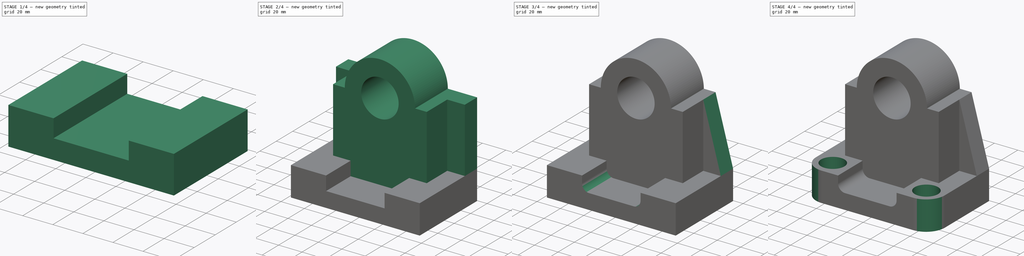
[diagram: build sequence overview — one tinted view per stage of 4, left to right]
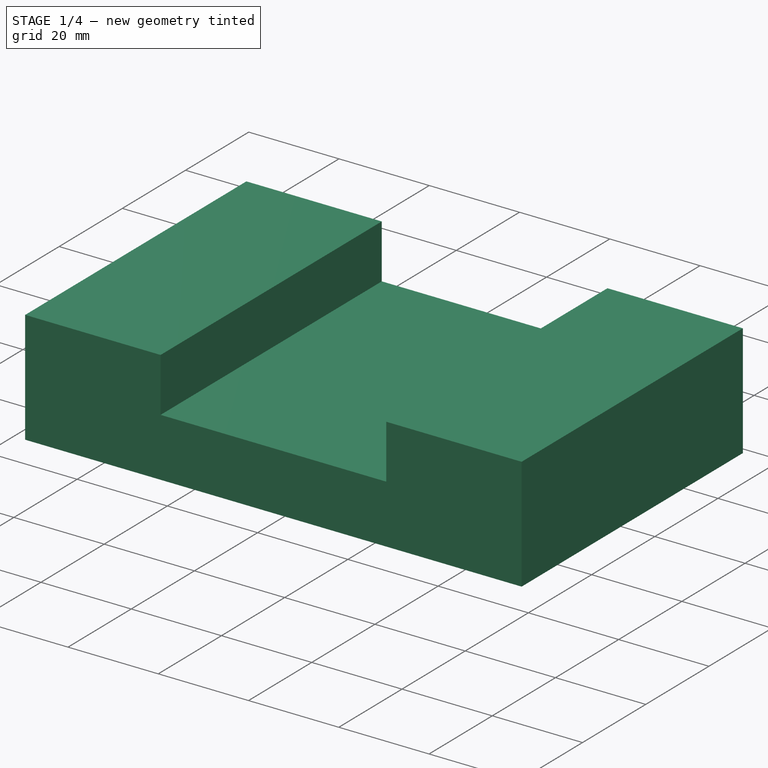
[diagram: stage 1 of 4 — iso view after this stage's code; geometry added in this stage tinted green]
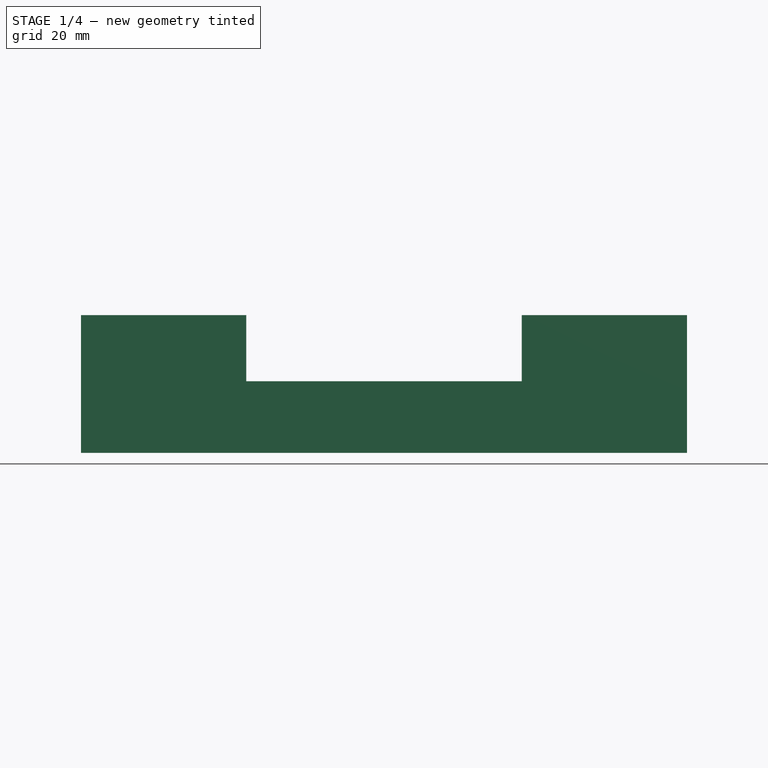
[diagram: stage 1 of 4 — front view after this stage's code; geometry added in this stage tinted green]
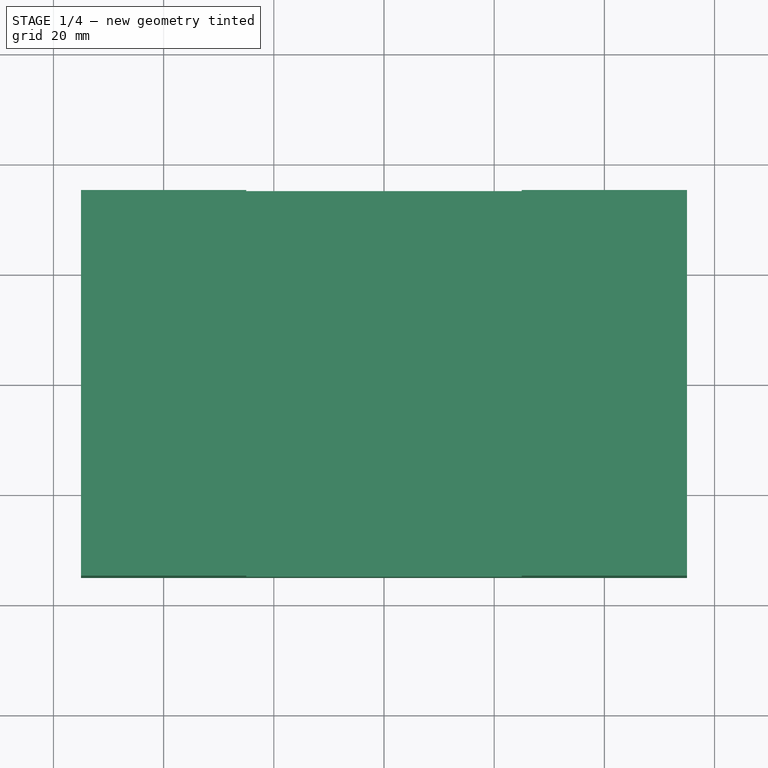
[diagram: stage 1 of 4 — top view after this stage's code; geometry added in this stage tinted green]
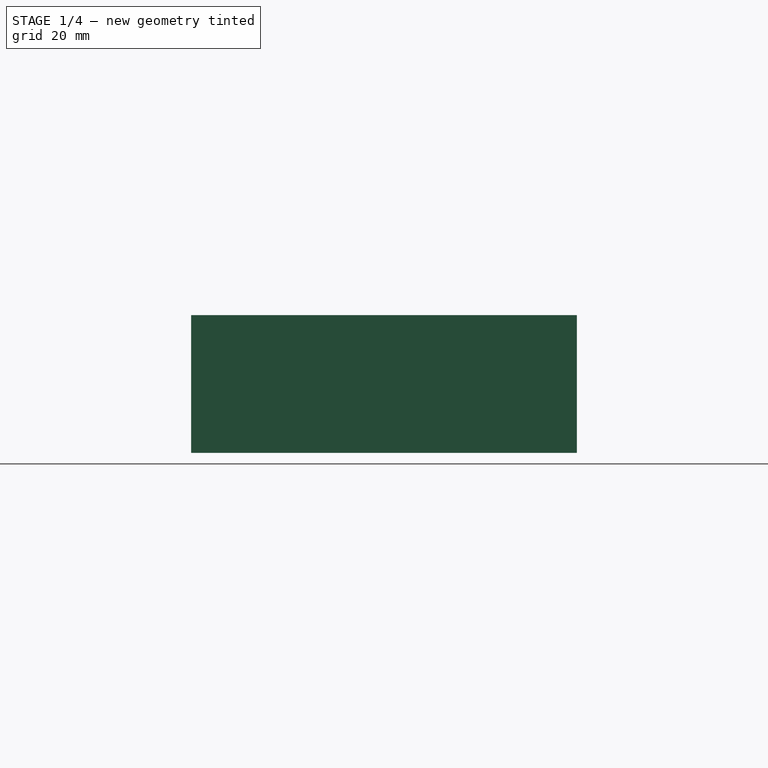
[diagram: stage 1 of 4 — right view after this stage's code; geometry added in this stage tinted green]
FCSTD DOCUMENT  (FreeCAD 0.18R4 (GitTag))
Label: Set 1
License: All rights reserved
LicenseURL: http://en.wikipedia.org/wiki/All_rights_reserved
objects: Sketcher::SketchObject×7, PartDesign::Pocket×5, PartDesign::Fillet×3, PartDesign::Pad×2, PartDesign::Body×1
note: 25 computed .brp shape members not serialized (recipe doc carries the construction recipe); baked Part::Feature solids carry a one-line shape summary decoded from their .brp

FEATURE [Sketcher::SketchObject] Sketch
  MapMode = 5
  Support = -> [XY_Plane]
  sketch-geometry (4):
    g0: LineSegment StartX=-55 StartY=35 StartZ=0 EndX=55 EndY=35 EndZ=0
    g1: LineSegment StartX=55 StartY=35 StartZ=0 EndX=55 EndY=-35 EndZ=0
    g2: LineSegment StartX=55 StartY=-35 StartZ=0 EndX=-55 EndY=-35 EndZ=0
    g3: LineSegment StartX=-55 StartY=-35 StartZ=0 EndX=-55 EndY=35 EndZ=0
  constraints (11):
    c: Coincident(g0,g1)
    c: Coincident(g1,g2)
    c: Coincident(g2,g3)
    c: Coincident(g3,g0)
    c: Horizontal(g0)
    c: Horizontal(g2)
    c: Vertical(g1)
    c: Vertical(g3)
    c: DistanceX(g0,g0) = 110
    c: DistanceY(g3,g3) = 70
    c: Symmetric(g0,g1,g-1)
FEATURE [PartDesign::Pad] Pad
  Length = 25
  Length2 = 100
  Profile = -> Sketch
  Type = 0
FEATURE [Sketcher::SketchObject] Sketch001
  ExternalGeometry = -> [Pad]
  MapMode = 5
  Placement = pos=(0,-35,0) rot=(1,0,0;1.5708rad)
  Support = -> [Pad]
  sketch-geometry (4):
    g0: LineSegment StartX=-25 StartY=25 StartZ=0 EndX=25 EndY=25 EndZ=0
    g1: LineSegment StartX=25 StartY=25 StartZ=0 EndX=25 EndY=13 EndZ=0
    g2: LineSegment StartX=25 StartY=13 StartZ=0 EndX=-25 EndY=13 EndZ=0
    g3: LineSegment StartX=-25 StartY=13 StartZ=0 EndX=-25 EndY=25 EndZ=0
  constraints (12):
    c: Coincident(g0,g1)
    c: Coincident(g1,g2)
    c: Coincident(g2,g3)
    c: Coincident(g3,g0)
    c: Horizontal(g0)
    c: Horizontal(g2)
    c: Vertical(g1)
    c: Vertical(g3)
    c: DistanceX(g2,g2) = 50
    c: DistanceY(g1,g1) = 12
    c: DistanceX(g-1,g1) = 25
    c: PointOnObject(g0,g-3)
FEATURE [PartDesign::Pocket] Pocket
  BaseFeature = -> Pad
  Length = 5
  Length2 = 100
  Profile = -> Sketch001
  Type = 1
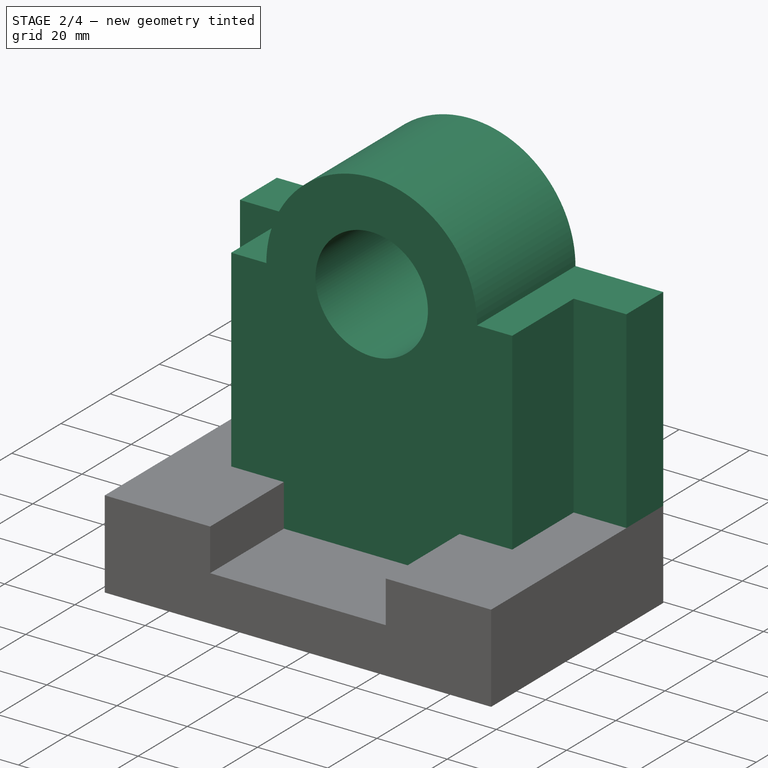
[diagram: stage 2 of 4 — iso view after this stage's code; geometry added in this stage tinted green]
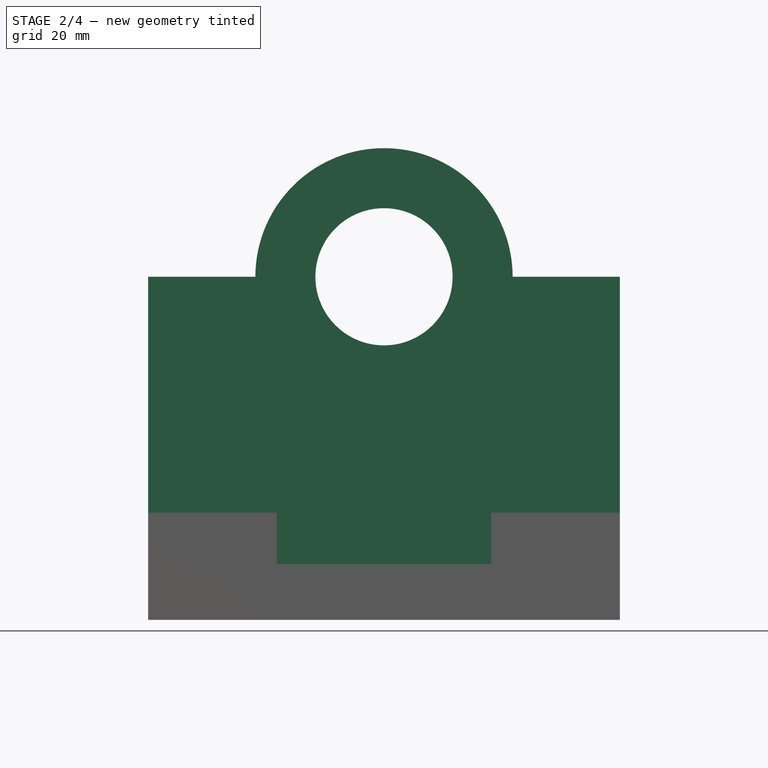
[diagram: stage 2 of 4 — front view after this stage's code; geometry added in this stage tinted green]
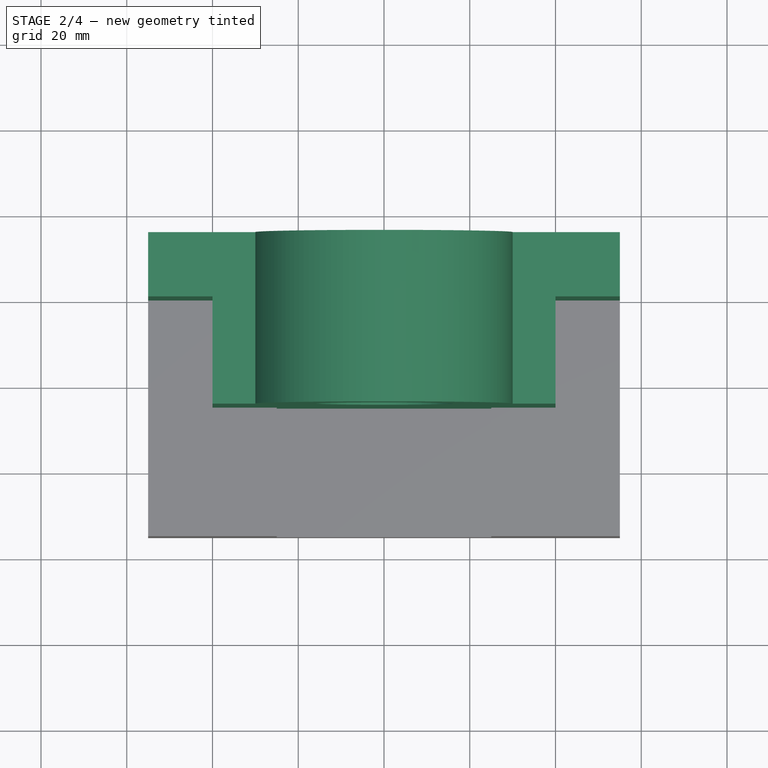
[diagram: stage 2 of 4 — top view after this stage's code; geometry added in this stage tinted green]
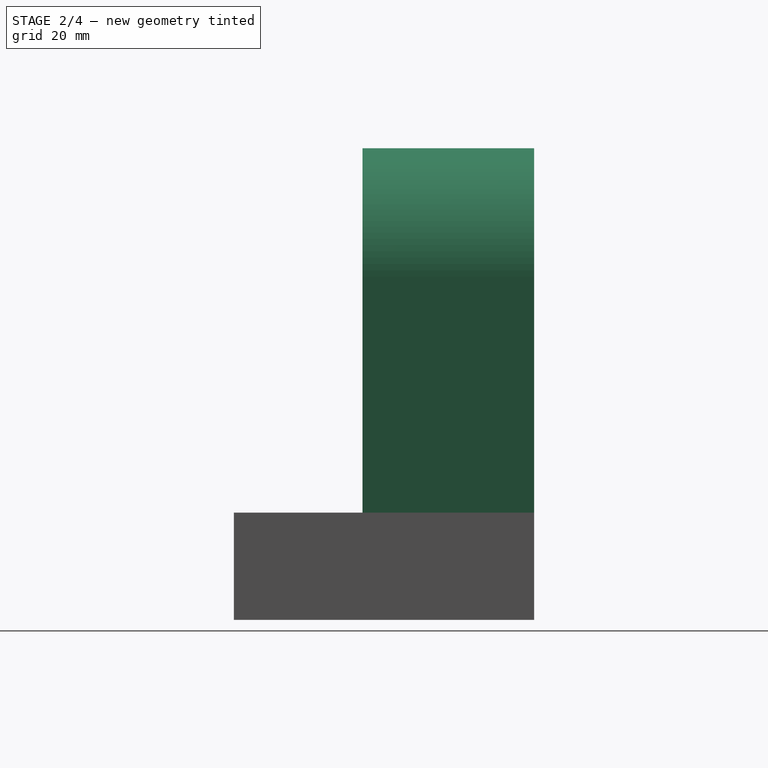
[diagram: stage 2 of 4 — right view after this stage's code; geometry added in this stage tinted green]
FEATURE [Sketcher::SketchObject] Sketch002
  ExternalGeometry = -> [Pocket]
  MapMode = 5
  Placement = pos=(0,35,0) rot=(0,0.707107,0.707107;3.14159rad)
  Support = -> [Pocket]
  sketch-geometry (10):
    g0: LineSegment StartX=-55 StartY=25 StartZ=0 EndX=-55 EndY=80 EndZ=0
    g1: LineSegment StartX=-55 StartY=80 StartZ=0 EndX=-30 EndY=80 EndZ=0
    g2: LineSegment StartX=55 StartY=25 StartZ=0 EndX=55 EndY=80 EndZ=0
    g3: LineSegment StartX=55 StartY=80 StartZ=0 EndX=30 EndY=80 EndZ=0
    g4: ArcOfCircle CenterX=0 CenterY=80 CenterZ=0 NormalX=0 NormalY=0 NormalZ=1 AngleXU=0 Radius=30 StartAngle=0 EndAngle=3.14159
    g5: LineSegment StartX=-55 StartY=25 StartZ=0 EndX=-25 EndY=25 EndZ=0
    g6: LineSegment StartX=-25 StartY=25 StartZ=0 EndX=-25 EndY=13 EndZ=0
    g7: LineSegment StartX=-25 StartY=13 StartZ=0 EndX=25 EndY=13 EndZ=0
    g8: LineSegment StartX=25 StartY=13 StartZ=0 EndX=25 EndY=25 EndZ=0
    g9: LineSegment StartX=25 StartY=25 StartZ=0 EndX=55 EndY=25 EndZ=0
  constraints (25):
    c: Coincident(g0,g1)
    c: Coincident(g2,g3)
    c: Radius(g4) = 30
    c: Coincident(g4,g1)
    c: Coincident(g0,g-3)
    c: Coincident(g4,g3)
    c: Coincident(g2,g-4)
    c: DistanceY(g2,g2) = 55
    c: DistanceY(g0,g0) = 55
    c: Parallel(g0,g-2)
    c: Parallel(g2,g-2)
    c: Parallel(g1,g-3)
    c: Parallel(g3,g-4)
    c: DistanceY(g-3,g4) = 55
    c: PointOnObject(g4,g-2)
    c: Coincident(g5,g6)
    c: Coincident(g6,g7)
    c: Coincident(g7,g8)
    c: Coincident(g8,g9)
    c: Coincident(g5,g0)
    c: Coincident(g5,g-5)
    c: Coincident(g6,g-6)
    c: Coincident(g7,g-7)
    c: Coincident(g8,g-7)
    c: Coincident(g2,g9)
FEATURE [PartDesign::Pad] Pad001
  BaseFeature = -> Pocket
  Length = 40
  Length2 = 100
  Profile = -> Sketch002
  Reversed = true
  Type = 0
FEATURE [Sketcher::SketchObject] Sketch003
  ExternalGeometry = -> [Pad001]
  MapMode = 5
  Placement = pos=(0,35,-6.5e-15) rot=(0,0.707107,0.707107;3.14159rad)
  Support = -> [Pad001]
  sketch-geometry (1):
    g0: Circle CenterX=0 CenterY=80 CenterZ=0 NormalX=0 NormalY=0 NormalZ=1 AngleXU=0 Radius=16
  constraints (2):
    c: Radius(g0) = 16
    c: Coincident(g0,g-3)
FEATURE [PartDesign::Pocket] Pocket001
  BaseFeature = -> Pad001
  Length = 5
  Length2 = 100
  Profile = -> Sketch003
  Type = 1
FEATURE [Sketcher::SketchObject] Sketch004
  ExternalGeometry = -> [Pocket001]
  MapMode = 5
  Placement = pos=(0,-5,9e-16) rot=(1,0,0;1.5708rad)
  Support = -> [Pocket001]
  sketch-geometry (8):
    g0: LineSegment StartX=-55 StartY=80 StartZ=0 EndX=-40 EndY=80 EndZ=0
    g1: LineSegment StartX=-40 StartY=80 StartZ=0 EndX=-40 EndY=25 EndZ=0
    g2: LineSegment StartX=-40 StartY=25 StartZ=0 EndX=-55 EndY=25 EndZ=0
    g3: LineSegment StartX=-55 StartY=25 StartZ=0 EndX=-55 EndY=80 EndZ=0
    g4: LineSegment StartX=55 StartY=80 StartZ=0 EndX=40 EndY=80 EndZ=0
    g5: LineSegment StartX=55 StartY=25 StartZ=0 EndX=55 EndY=80 EndZ=0
    g6: LineSegment StartX=40 StartY=80 StartZ=0 EndX=40 EndY=25 EndZ=0
    g7: LineSegment StartX=40 StartY=25 StartZ=0 EndX=55 EndY=25 EndZ=0
  constraints (19):
    c: Coincident(g0,g1)
    c: Coincident(g1,g2)
    c: Coincident(g2,g3)
    c: Coincident(g3,g0)
    c: Horizontal(g0)
    c: Horizontal(g2)
    c: Vertical(g1)
    c: Coincident(g-4,g2)
    c: Coincident(g0,g-3)
    c: DistanceX(g0,g0) = 15
    c: Coincident(g4,g6)
    c: Coincident(g6,g7)
    c: Coincident(g7,g5)
    c: Coincident(g5,g4)
    c: Horizontal(g4)
    c: Horizontal(g7)
    c: Vertical(g6)
    c: DistanceX(g4,g4) = 15
    c: DistanceX(g6,g5) = 15
FEATURE [PartDesign::Pocket] Pocket002
  BaseFeature = -> Pocket001
  Length = 25
  Length2 = 100
  Profile = -> Sketch004
  Type = 0
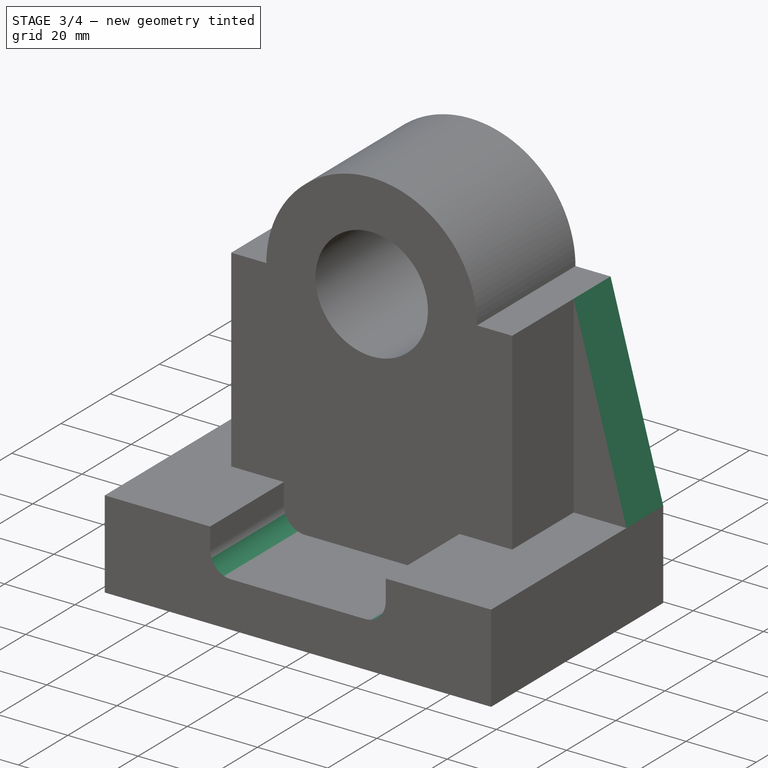
[diagram: stage 3 of 4 — iso view after this stage's code; geometry added in this stage tinted green]
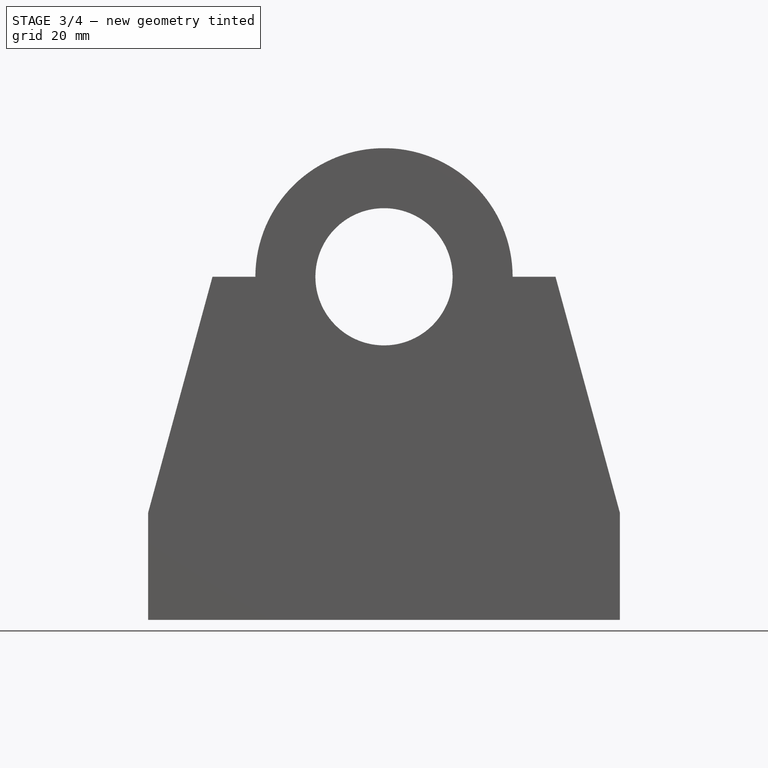
[diagram: stage 3 of 4 — front view after this stage's code; geometry added in this stage tinted green]
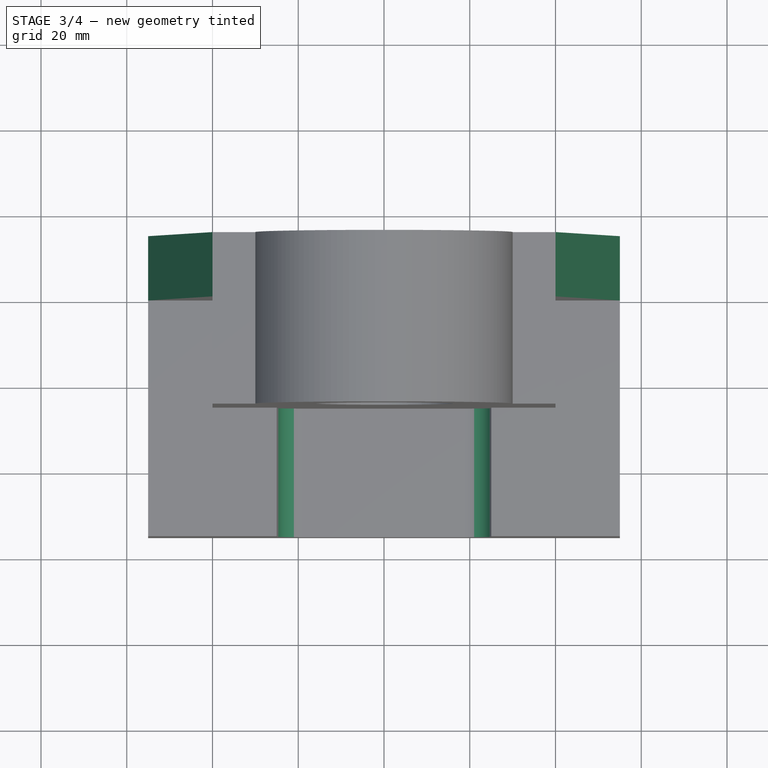
[diagram: stage 3 of 4 — top view after this stage's code; geometry added in this stage tinted green]
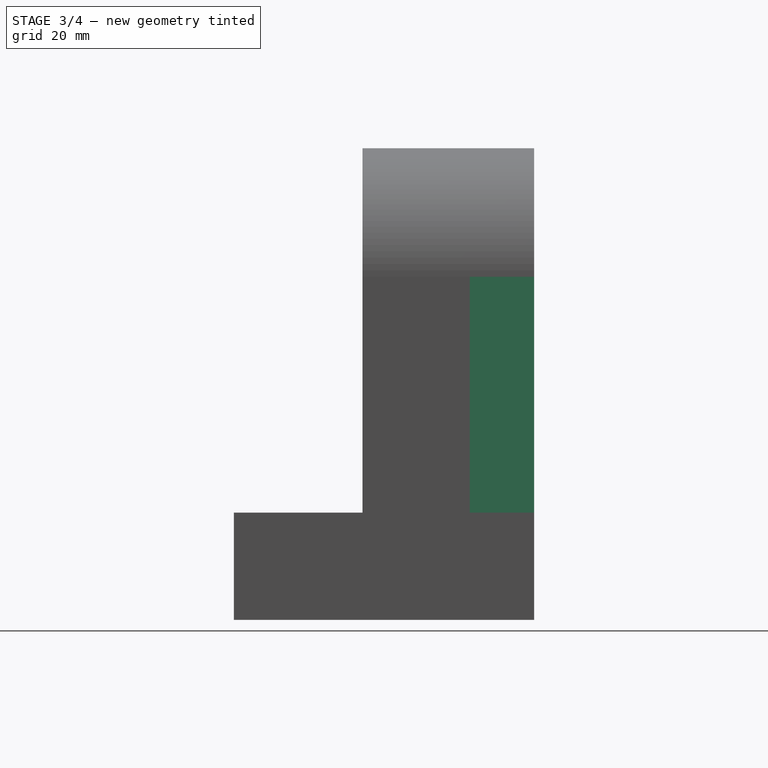
[diagram: stage 3 of 4 — right view after this stage's code; geometry added in this stage tinted green]
FEATURE [Sketcher::SketchObject] Sketch005
  ExternalGeometry = -> [Pocket002]
  MapMode = 5
  Placement = pos=(0,20,-4.5e-15) rot=(1,0,0;1.5708rad)
  Support = -> [Pocket002]
  sketch-geometry (6):
    g0: LineSegment StartX=-55 StartY=80 StartZ=0 EndX=-55 EndY=25 EndZ=0
    g1: LineSegment StartX=-55 StartY=25 StartZ=0 EndX=-40 EndY=80 EndZ=0
    g2: LineSegment StartX=-40 StartY=80 StartZ=0 EndX=-55 EndY=80 EndZ=0
    g3: LineSegment StartX=55 StartY=25 StartZ=0 EndX=40 EndY=80 EndZ=0
    g4: LineSegment StartX=55 StartY=80 StartZ=0 EndX=55 EndY=25 EndZ=0
    g5: LineSegment StartX=40 StartY=80 StartZ=0 EndX=55 EndY=80 EndZ=0
  constraints (9):
    c: Coincident(g0,g1)
    c: Coincident(g1,g2)
    c: Coincident(g2,g0)
    c: Coincident(g0,g-4)
    c: Coincident(g1,g-3)
    c: Coincident(g0,g-4)
    c: Coincident(g4,g3)
    c: Coincident(g3,g5)
    c: Coincident(g5,g4)
FEATURE [PartDesign::Pocket] Pocket003
  BaseFeature = -> Pocket002
  Length = 5
  Length2 = 100
  Profile = -> Sketch005
  Type = 1
FEATURE [PartDesign::Fillet] Fillet
  Base = -> Pocket003 [Edge57]
  BaseFeature = -> Pocket003
  Radius = 6
FEATURE [PartDesign::Fillet] Fillet001
  Base = -> Fillet [Edge11]
  BaseFeature = -> Fillet
  Radius = 6
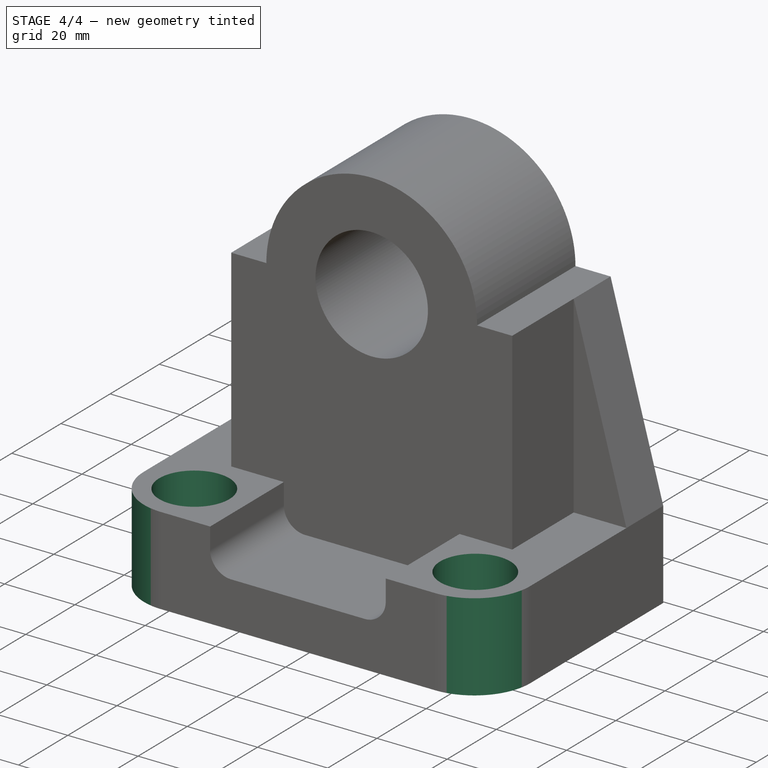
[diagram: stage 4 of 4 — iso view after this stage's code; geometry added in this stage tinted green]
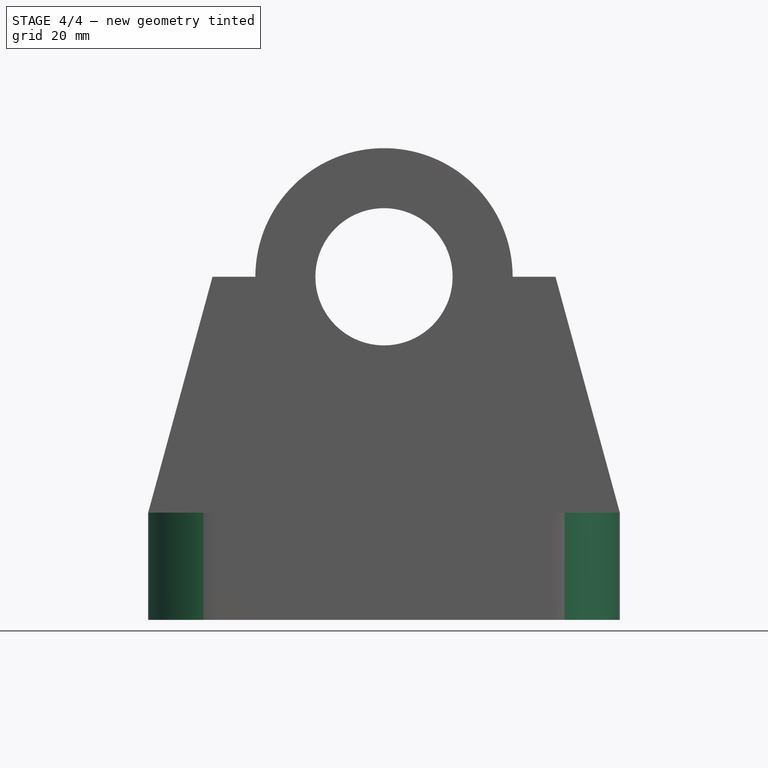
[diagram: stage 4 of 4 — front view after this stage's code; geometry added in this stage tinted green]
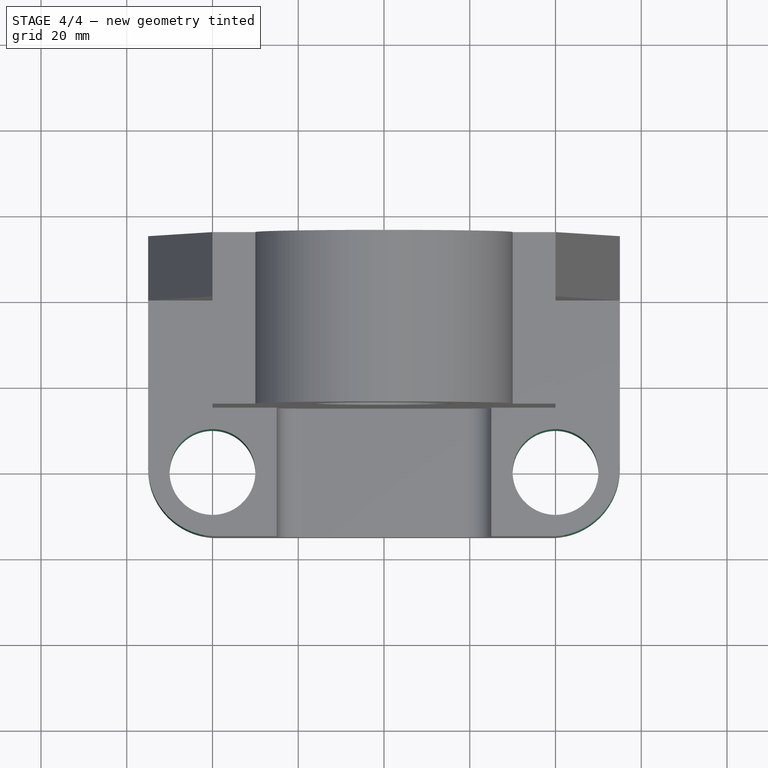
[diagram: stage 4 of 4 — top view after this stage's code; geometry added in this stage tinted green]
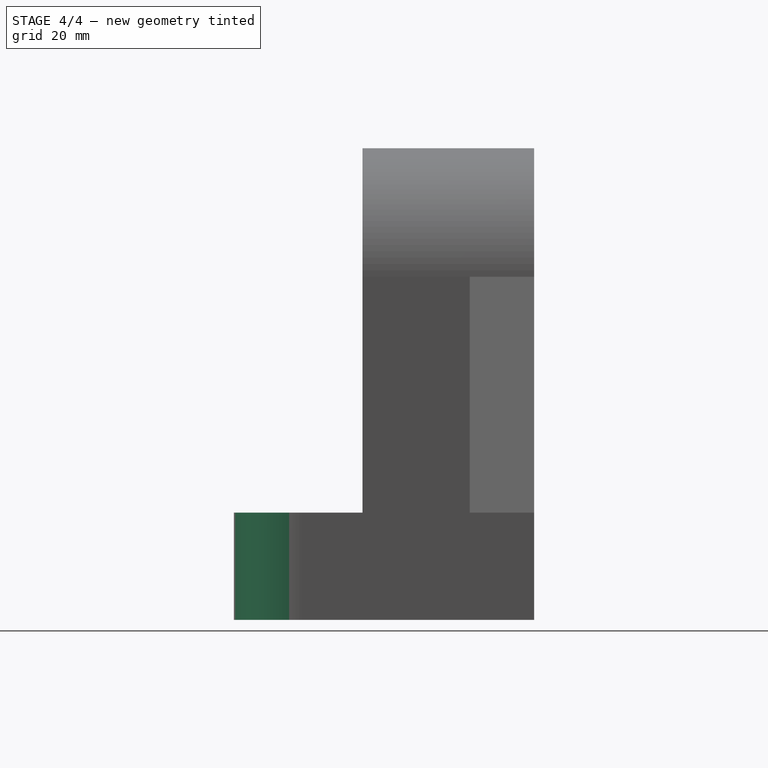
[diagram: stage 4 of 4 — right view after this stage's code; geometry added in this stage tinted green]
FEATURE [PartDesign::Fillet] Fillet002
  Base = -> Fillet001 [Edge8,Edge9]
  BaseFeature = -> Fillet001
  Radius = 16
FEATURE [Sketcher::SketchObject] Sketch006
  ExternalGeometry = -> [Fillet002]
  MapMode = 5
  Placement = pos=(0,0,25) rot=(0,0,1;0rad)
  Support = -> [Fillet002]
  sketch-geometry (2):
    g0: Circle CenterX=-40 CenterY=-20 CenterZ=0 NormalX=0 NormalY=0 NormalZ=1 AngleXU=0 Radius=10
    g1: Circle CenterX=40 CenterY=-20 CenterZ=0 NormalX=0 NormalY=0 NormalZ=1 AngleXU=0 Radius=10
  constraints (3):
    c: Radius(g0) = 10
    c: Symmetric(g-6,g-5,g0)
    c: Radius(g1) = 10
FEATURE [PartDesign::Pocket] Pocket004
  BaseFeature = -> Fillet002
  Length = 5
  Length2 = 100
  Profile = -> Sketch006
  Type = 1
FEATURE [PartDesign::Body] Body
  Group = -> [Sketch,Pad,Sketch001,Pocket,Sketch002,Pad001,Sketch003,Pocket001,Sketch004,Pocket002,Sketch005,Pocket003,Fillet,Fillet001,Fillet002,Sketch006,Pocket004]
  Origin = -> Origin
  Tip = -> Pocket004
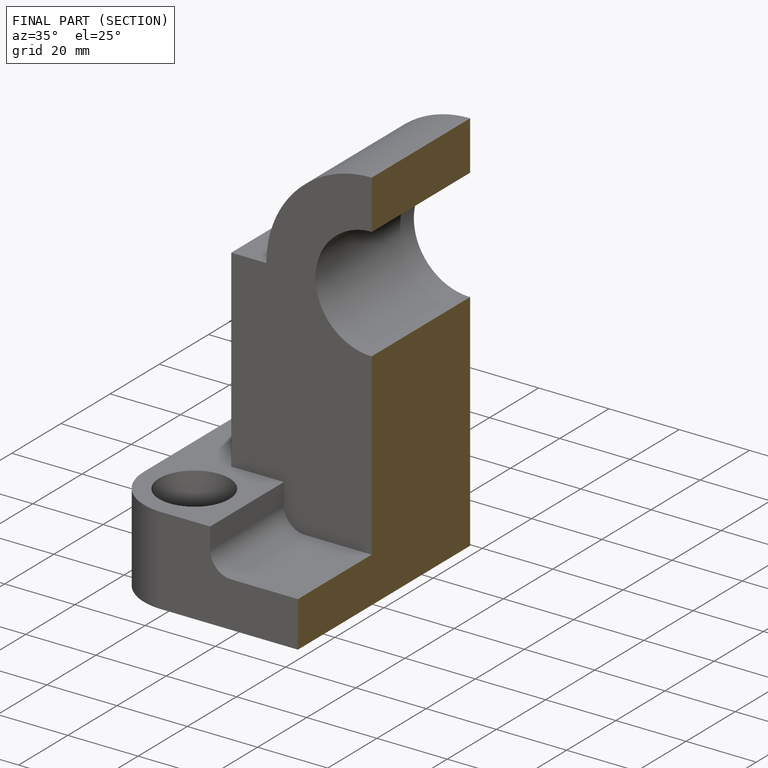
[diagram: finished part — half-section view (interior)]
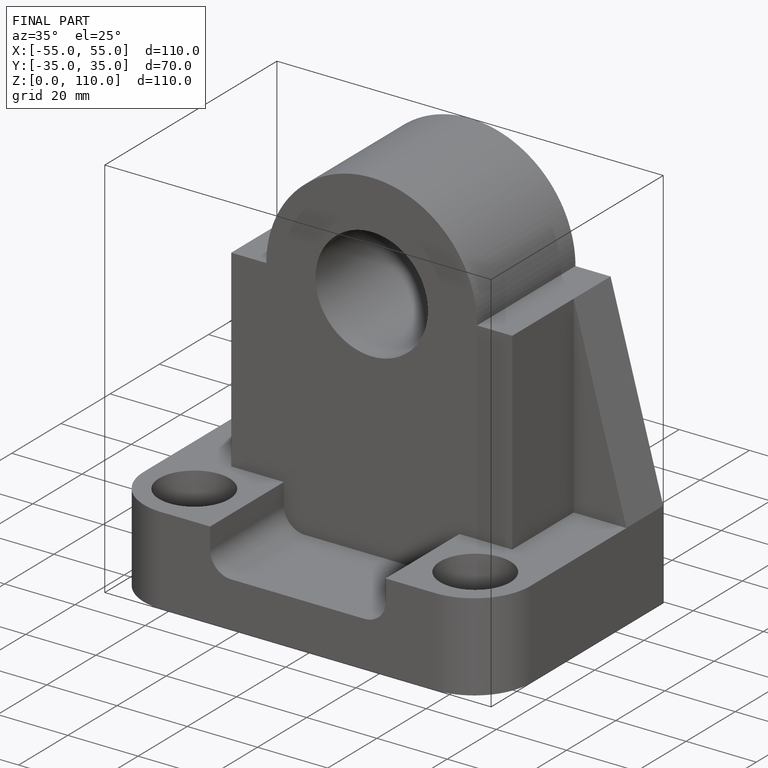
[diagram: finished part — iso view with bounding-box wireframe]
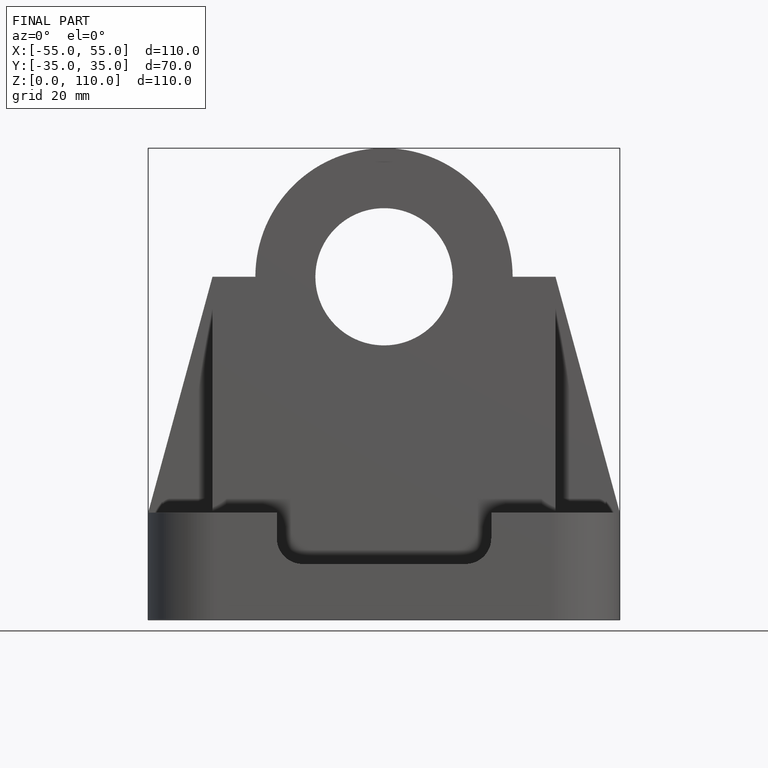
[diagram: finished part — front view with bounding-box wireframe]
